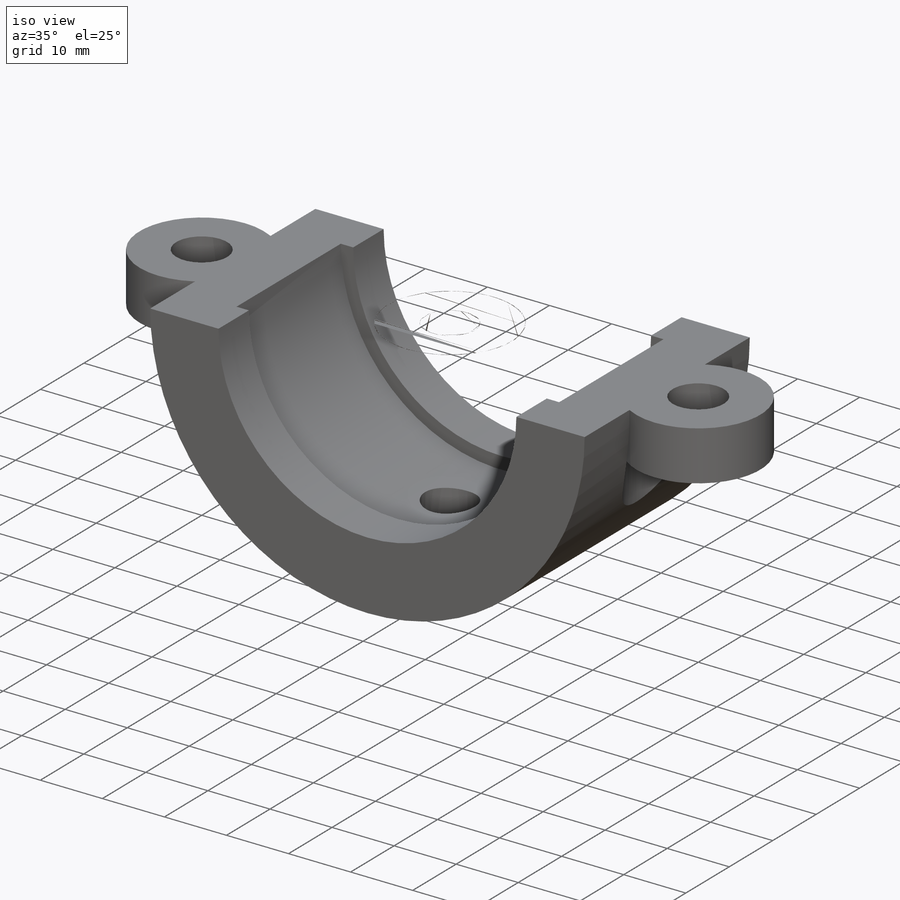
[diagram: iso view]
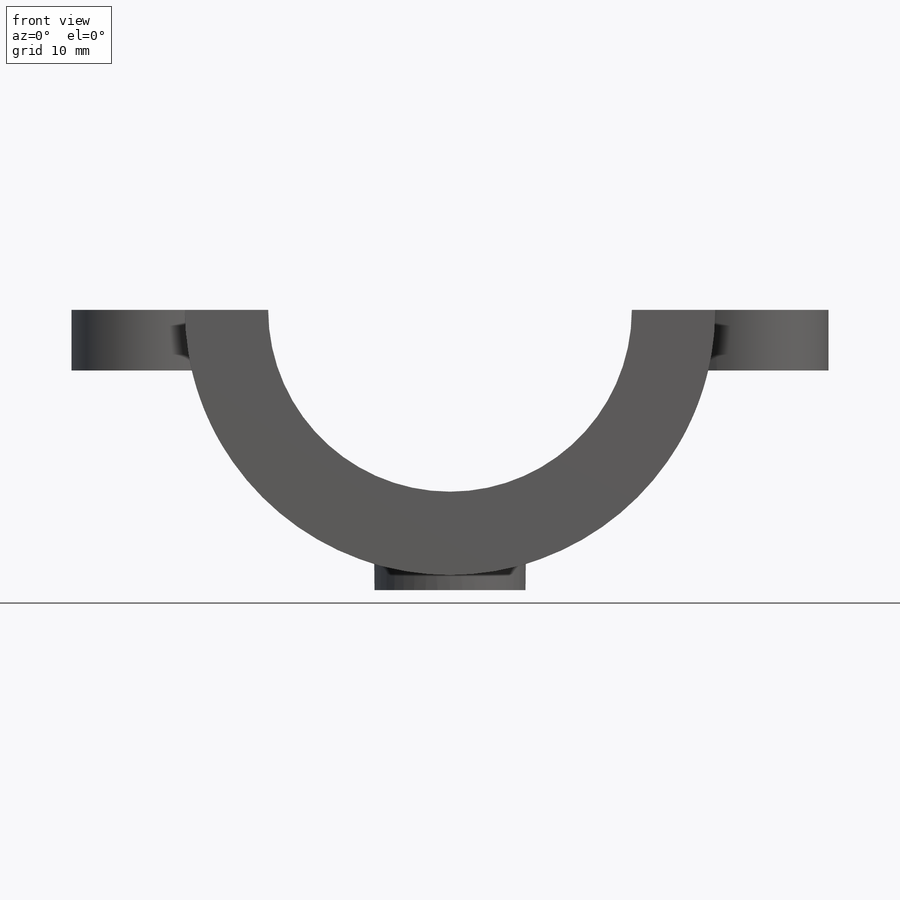
[diagram: front view]
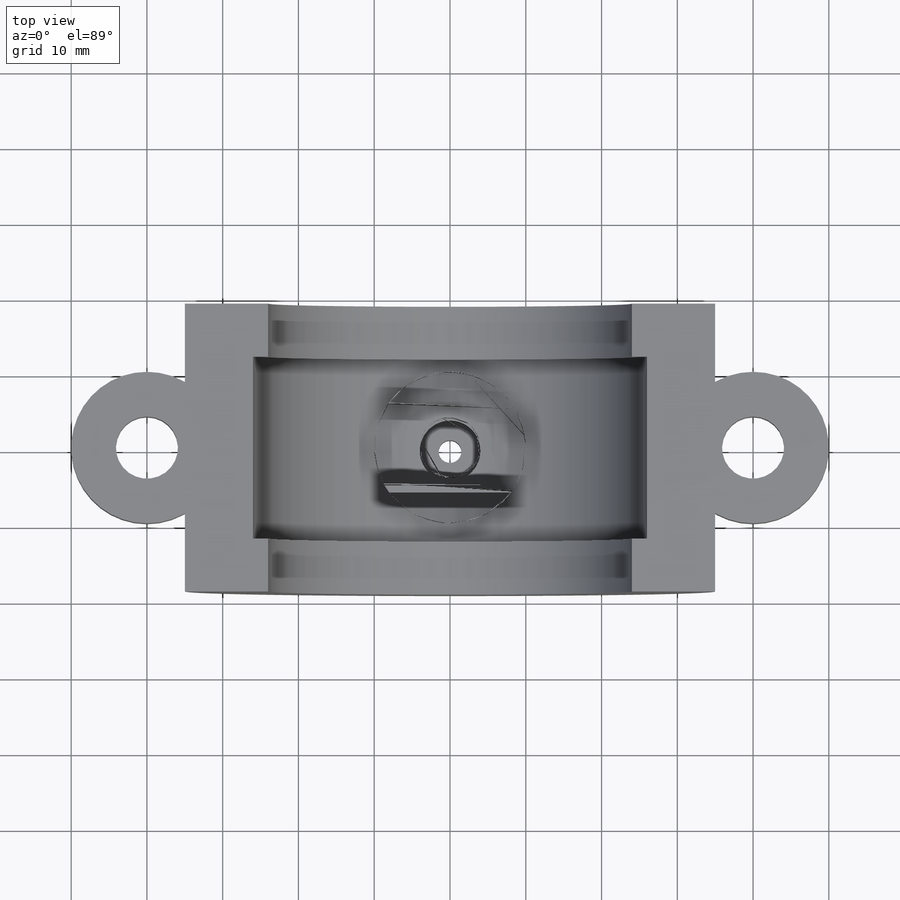
[diagram: top view]
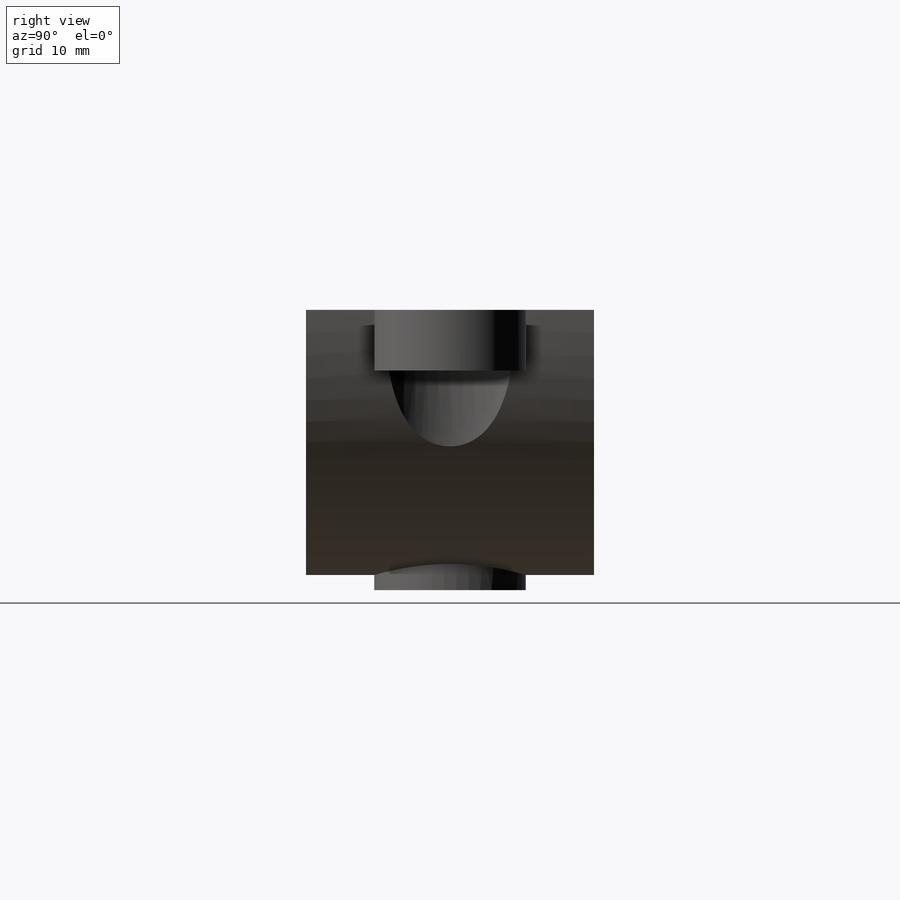
[diagram: right view]
SOLIDWORKS PART (.sldprt)
format: sldprt  version: not decoded by parser v0  size: 337,920 bytes
history: native  units: mm
features: sketch x8, cut_extrude x5, plane x3, extrude x3, material x1, mirror x1 (+9 scaffold rows collapsed)
feature tree (30):
  scaffold x9  (default folders/planes/origin — collapsed)
  material  "Сталь"
  plane  "Спереди"
  plane  "Сверху"
  plane  "Справа"
  sketch  "Эскиз1"  dims[D1=48.0mm D2=70.0mm D3=52.0mm]
  extrude  "Бобышка-Вытянуть2"  Depth=38mm
  sketch  "Эскиз2"  dims[D1=20.0mm D2=40.0mm]
  extrude  "Бобышка-Вытянуть3"  Depth=40mm
  sketch  "Эскиз3"  dims[D1=0.0mm]
  cut_extrude  "Вырез-Вытянуть1"  Depth=8mm
  sketch  "Эскиз4"  dims[D1=8.2mm]
  cut_extrude  "Вырез-Вытянуть2"  [1 undecoded]
  mirror  "Зеркальное отражение1"
  sketch  "Эскиз5"  dims[D1=20.0mm D2=3.0mm]
  extrude  "Бобышка-Вытянуть4"  Depth=37mm
  cut_extrude  "Вырез-Вытянуть3"  [1 undecoded]
  sketch  "Эскиз5<4>"
  cut_extrude  "Вырез-Вытянуть4"  [1 undecoded]
  sketch  "Эскиз1<4>"  dims[D1=24.0mm]
  sketch  "Эскиз6"  dims[D1=8.0mm]
  cut_extrude  "Вырез-Вытянуть5"  Depth=30mm
decode coverage: 12 of 17 modeling features carry decoded parameters
note: 3 parameter values undecoded
summary: no parameter record found for 3 features
note: suppression state not decoded; provenance and decode notes live in map.json
